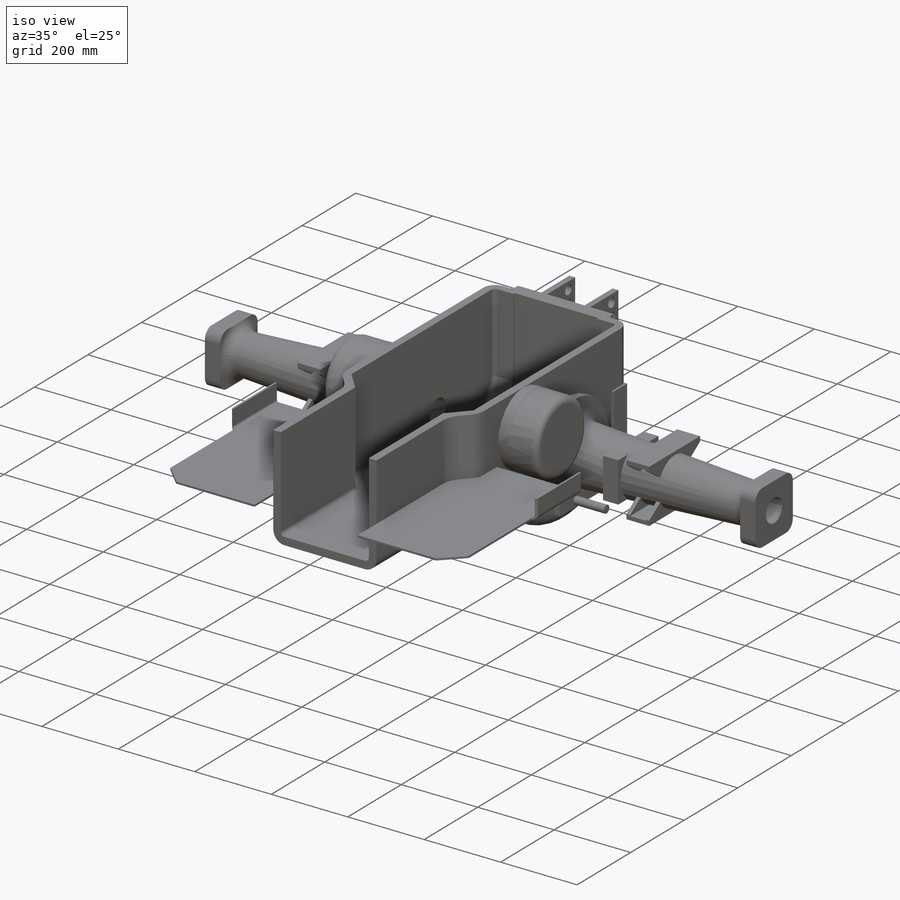
[diagram: iso view]
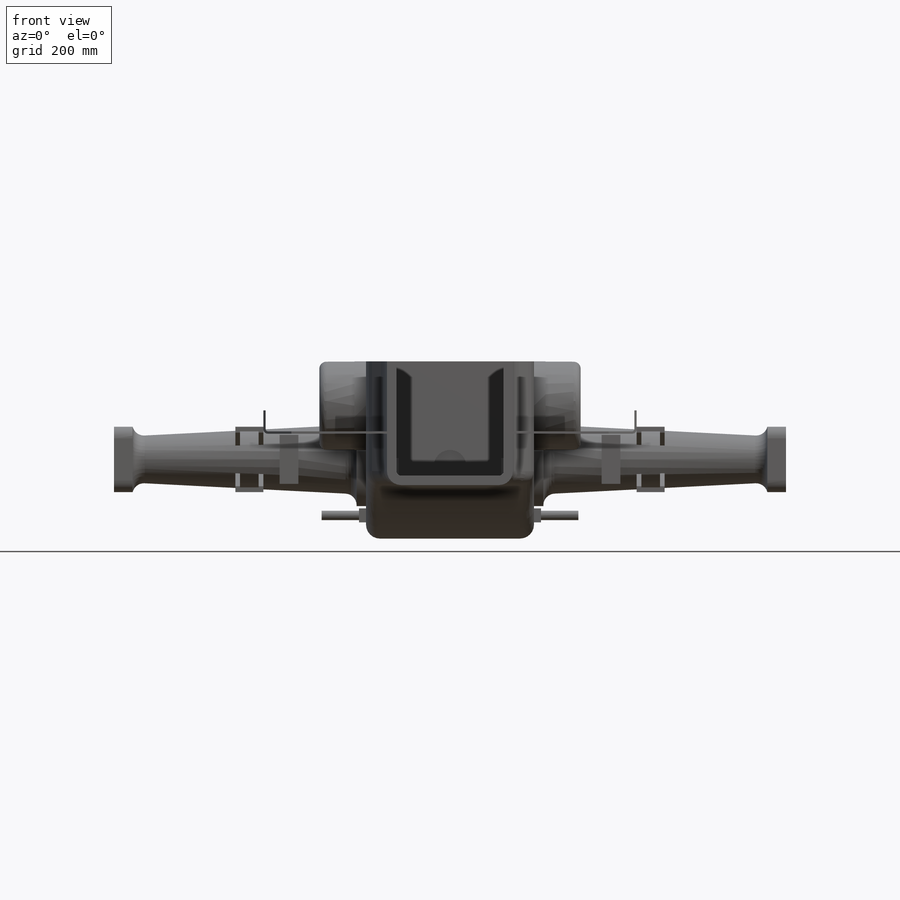
[diagram: front view]
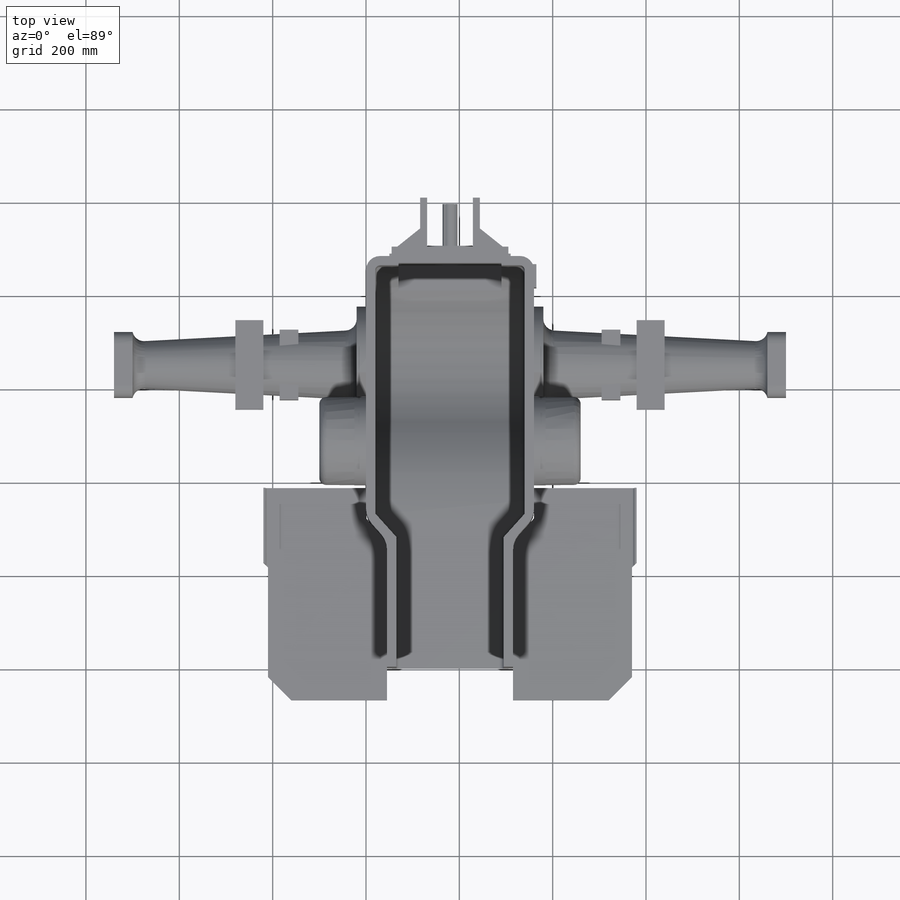
[diagram: top view]
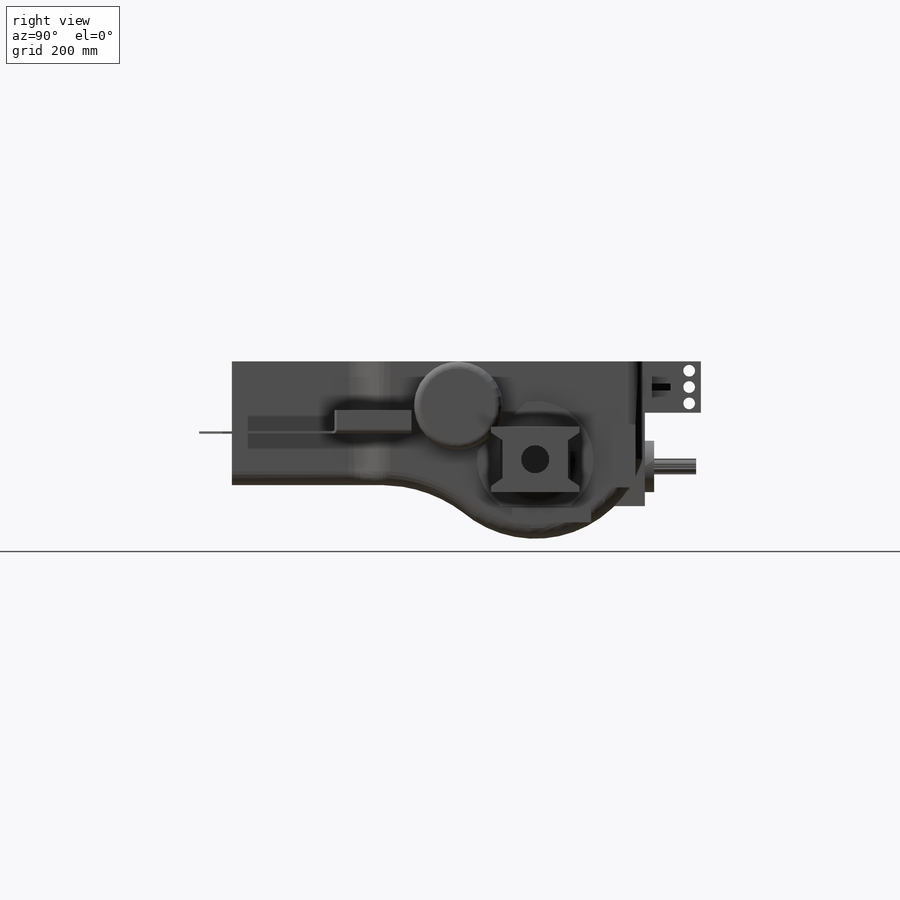
[diagram: right view]
SOLIDWORKS PART (.sldprt)
format: sldprt  version: not decoded by parser v0  size: 1,133,568 bytes
history: native  units: mm
features: sketch x26, extrude x18, cut_extrude x4, fillet x4, shell x3, mirror x3, hole x2, material x1, plane x1, chamfer x1 (+13 scaffold rows collapsed)
feature tree (76):
  scaffold x13  (default folders/planes/origin — collapsed)
  material  "Material <not specified>"
  sketch  "Sketch3"  dims[c1.D5=~240.588235mm c1.D6=~290.390026mm c1.D1=880.0mm c1.D2=265.0mm c1.D3=210.0mm c1.D4=230.0mm c2.D5=170.0mm c2.D6=270.0mm c2.D7=50.0mm c3.D6=320.0mm c3.D7=320.0mm c3.D8=~240.588235mm c4.D8=40.0deg]
  extrude  "Boss-Extrude2"  Depth=360mm
  sketch  "Sketch5"  dims[D1=45.0mm D2=320.0mm D3=270.0mm]
  cut_extrude  "Cut-Extrude1"  [1 undecoded]
  fillet  "Fillet1"  Radius=30mm
  sketch  "Sketch8"  dims[c1.D1=885.0mm c1.D2=310.0mm c2.D1=885.0mm]
  extrude  "Boss-Extrude6"  Depth=50mm
  sketch  "Sketch10"  dims[D1=110.0mm D3=110.0mm D2=85.0mm]
  extrude  "Boss-Extrude8"  Depth=20mm
  shell  "Shell7"  Thickness=20mm
  sketch  "Sketch7"  dims[D1=189.0mm D2=0.5mm D3=485.0mm]
  extrude  "Boss-Extrude4"  Depth=25mm
  extrude  "Boss-Extrude5"  [1 undecoded]
  sketch  "Sketch7<3>"  dims[D1=75.0mm]
  sketch  "Sketch12"  dims[c1.D1=125.0mm c1.D2=100.0mm c1.D3=100.0mm c1.D4=150.0mm c2.D4=45.0deg c2.D5=650.0mm c2.D6=210.0mm c3.D5=650.0mm]
  extrude  "Boss-Extrude10"  Depth=20mm
  sketch  "Sketch11"  dims[c1.D1=17.0mm c1.D2=14.0mm c1.D3=7.0mm c1.D4=~9.989357mm c2.D4=~45.522488deg c2.D2=~13.870641mm c3.D2=~28.322926deg c4.D2=14.0mm c4.D4=~7.493264mm c4.D1=0.0mm]
  extrude  "Boss-Extrude9"  Depth=90mm
  sketch  "Sketch9"  dims[D1=61.0mm D2=105.0mm D3=15.0mm D4=15.0mm D5=98.0mm D6=15.0mm D7=61.0mm D8=5.0mm]
  extrude  "Boss-Extrude7"  Depth=110mm
  sketch  "Sketch13"  dims[D1=150.0mm]
  extrude  "Boss-Extrude11"  Depth=480mm
  sketch  "Sketch14"  dims[D3=25.0mm D1=140.0mm D2=140.0mm]
  extrude  "Boss-Extrude12"  Depth=40mm
  sketch  "Sketch15"  dims[D1=60.0mm]
  cut_extrude  "Cut-Extrude2"  [1 undecoded]
  sketch  "Sketch16"  dims[c1.D1=60.0mm c1.D2=190.0mm c1.D3=220.0mm c1.D4=40.0mm c1.D5=145.0mm c1.D6=150.0mm c2.D3=220.0mm c2.D1=0.0mm]
  extrude  "Boss-Extrude13"  [1 undecoded]
  sketch  "Sketch17"  dims[c1.D3=60.0mm c1.D1=~83.636364mm c2.D1=~69.017046deg c3.D1=57.5mm c3.D2=~101.495277mm c4.D2=~55.491477deg c5.D2=115.0mm c5.D3=22.0mm c5.D4=~11.363636mm c6.D3=85.0mm c6.D4=85.0mm]
  cut_extrude  "Cut-Extrude3"  [1 undecoded]
  cut_extrude  "Cut-Extrude5"  [1 undecoded]
  sketch  "Sketch13<3>"  dims[D3=3.0deg]
  shell  "Shell1"  Thickness=10mm
  shell  "Shell2"  Thickness=10mm
  sketch  "Sketch18"  dims[D1=105.0mm D2=150.0mm]
  extrude  "Boss-Extrude14"  Depth=40mm
  sketch  "Sketch19"  dims[c1.D1=50.0mm c1.D2=135.0mm c1.D3=815.0mm c1.D4=135.0mm c2.D3=815.0mm c2.D1=0.0mm]
  extrude  "Boss-Extrude15"  Depth=5mm
  sketch  "Sketch20"  dims[c1.D1=30.0mm c1.D2=170.0mm c1.D3=600.0mm c1.D4=315.0mm c2.D3=600.0mm c2.D1=0.0mm]
  extrude  "Boss-Extrude16"  Depth=15mm
  sketch  "Sketch21"  dims[D1=20.0mm D2=60.0mm]
  extrude  "Boss-Extrude17"  Depth=80mm
  fillet  "Fillet2"  Radius=50mm
  fillet  "Fillet3"  Radius=25mm
  fillet  "Fillet4"  Radius=15mm
  plane  "Plane1"
  mirror  "Mirror6"
  mirror  "Mirror7"
  hole  "Ø17.0 (17) Diameter Hole1"  Diameter=17mm Depth=30mm
  sketch  "Sketch23"  dims[D1=20.0mm D2=20.0mm]
  sketch  "Sketch22"  dims[hole-wizard template sketch: 46 standard entries collapsed; hole parameters kept: c15.Hole Dia.=17.0mm c15.Hole Depth=30.0mm c15.D3=~14.816244mm c15.Drill Angle=118.0deg]
  hole  "Ø25.0 (25) Diameter Hole1"  Diameter=25mm Depth=784mm
  sketch  "Sketch25"  dims[c1.D3=25.0mm c1.D1=20.0mm c1.D2=25.0mm c2.D3=35.0mm c2.D4=35.0mm]
  sketch  "Sketch24"  dims[hole-wizard template sketch: 59 standard entries collapsed; hole parameters kept: c18.Thru Hole Dia.=25.0mm c18.Thru Hole Depth=784.0mm]
  sketch  "Sketch26"  dims[D1=40.0mm D2=50.0mm D3=50.0mm]
  extrude  "Boss-Extrude18"  Depth=15mm
  sketch  "Sketch27"  dims[c1.D1=340.0mm c1.D2=205.0mm c1.D3=50.0mm c1.D4=50.0mm c1.D5=235.0mm c1.D6=~8.660254mm c1.D7=~8.660254mm c1.D8=~161.339746mm c2.D6=170.0mm c2.D7=220.0mm c2.D8=65.0mm c2.D9=45.0mm c2.D10=~8.660254mm c3.D10=~224.524234deg c4.D10=10.0mm c5.D10=130.0deg c6.D10=70.0mm c6.D5=405.0mm c6.D1=0.0mm c6.D2=0.0mm]
  extrude  "Boss-Extrude20"  Depth=5mm
  sketch  "Sketch28"  dims[c1.D5=~5.000002mm c1.D1=50.0mm c1.D2=45.0mm c1.D3=5.0mm c1.D4=10.0mm c2.D5=5.0mm c2.D1=0.0mm]
  extrude  "Boss-Extrude21"  Depth=160mm
  chamfer  "Chamfer1"  Distance=10mm Angle=45deg
  mirror  "Mirror9"
decode coverage: 52 of 61 modeling features carry decoded parameters
note: ~ marks probable driven/reference dimensions
note: 6 parameter values undecoded
summary: no parameter record found for 6 features
note: suppression state not decoded; provenance and decode notes live in map.json
